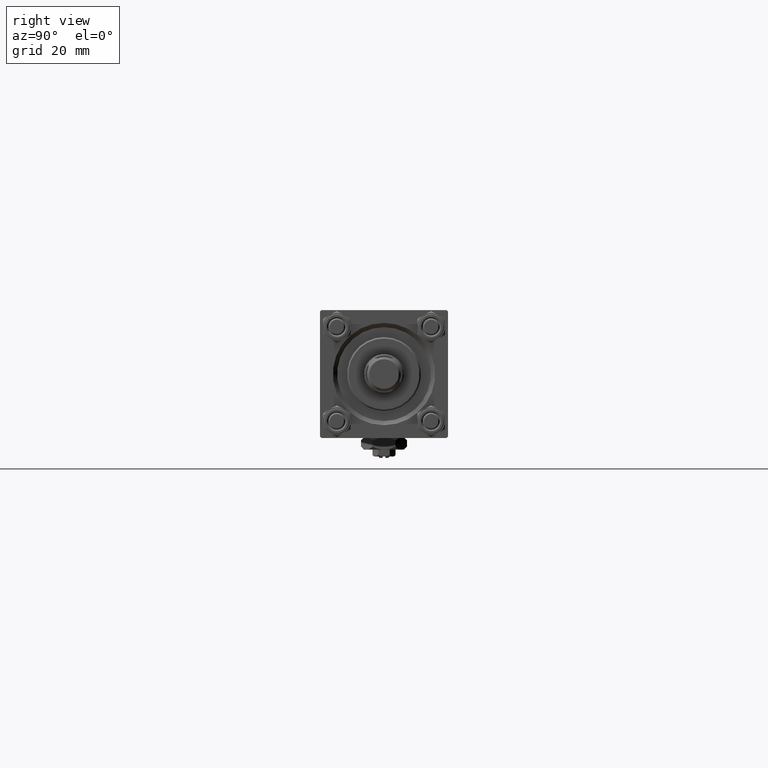
[diagram: clean part render]
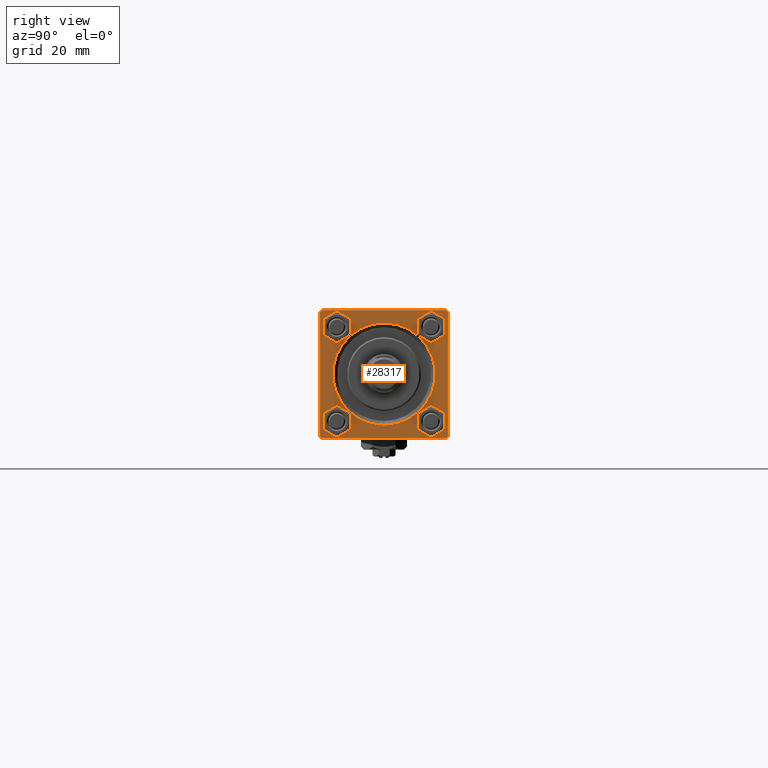
[diagram: same view with one face highlighted and labeled with its STEP entity id]
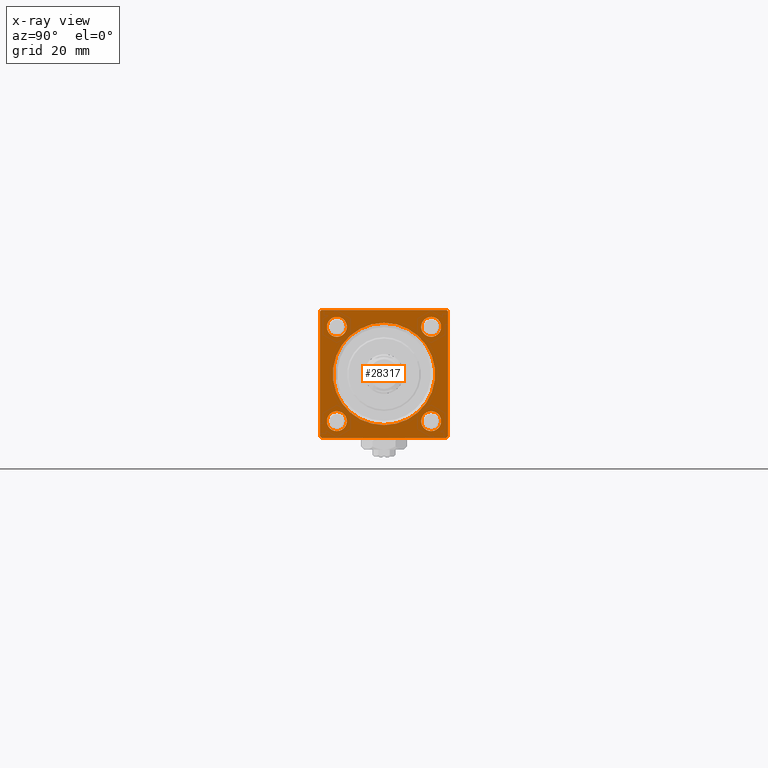
[diagram: x-ray of the same camera — body ghosted, the highlighted face saturated]
A machine part, right view. The second image highlights one B-rep face of the part: STEP entity #28317.
The next image is the same camera in x-ray: the body ghosted, the highlighted face saturated — about 0% of this face is hidden behind the body in this view.
In plain terms, the highlighted planar face has unit normal (-1, 0, 0).
Its self-contained STEP definition (entity closure, byte-faithful):
#137 = LINE ( 'NONE', #8294, #32030 ) ;
#254 = DIRECTION ( 'NONE',  ( -0.000000000000000000, 0.000000000000000000, 1.000000000000000000 ) ) ;
#287 = ORIENTED_EDGE ( 'NONE', *, *, #45254, .T. ) ;
#515 = EDGE_CURVE ( 'NONE', #26533, #2500, #10720, .T. ) ;
#704 = EDGE_LOOP ( 'NONE', ( #18842, #4105 ) ) ;
#899 = AXIS2_PLACEMENT_3D ( 'NONE', #16205, #39889, #8299 ) ;
#1027 = PLANE ( 'NONE',  #30408 ) ;
#1905 = EDGE_LOOP ( 'NONE', ( #8909, #19009 ) ) ;
#2274 = DIRECTION ( 'NONE',  ( -0.000000000000000000, -0.7071067811865474617, -0.7071067811865474617 ) ) ;
#2338 = ORIENTED_EDGE ( 'NONE', *, *, #51331, .T. ) ;
#2500 = VERTEX_POINT ( 'NONE', #28578 ) ;
#2581 = DIRECTION ( 'NONE',  ( -1.000000000000000000, 0.000000000000000000, -0.000000000000000000 ) ) ;
#3549 = AXIS2_PLACEMENT_3D ( 'NONE', #5671, #46960, #34350 ) ;
#3563 = ORIENTED_EDGE ( 'NONE', *, *, #31152, .T. ) ;
#4042 = CARTESIAN_POINT ( 'NONE',  ( 183.0000000000000000, -16.59999999999999076, 16.60000000000000853 ) ) ;
#4105 = ORIENTED_EDGE ( 'NONE', *, *, #12717, .T. ) ;
#4133 = DIRECTION ( 'NONE',  ( -1.000000000000000000, 0.000000000000000000, -0.000000000000000000 ) ) ;
#4350 = DIRECTION ( 'NONE',  ( 0.000000000000000000, 0.000000000000000000, -1.000000000000000000 ) ) ;
#4467 = FACE_BOUND ( 'NONE', #704, .T. ) ;
#5173 = CARTESIAN_POINT ( 'NONE',  ( 183.0000000000000000, 0.000000000000000000, 0.000000000000000000 ) ) ;
#5622 = EDGE_CURVE ( 'NONE', #51213, #17536, #30346, .T. ) ;
#5671 = CARTESIAN_POINT ( 'NONE',  ( 183.0000000000000000, 16.59999999999999787, -16.60000000000000497 ) ) ;
#6144 = CARTESIAN_POINT ( 'NONE',  ( 183.0000000000000000, 22.50000000000000355, 22.50000000000000355 ) ) ;
#6213 = DIRECTION ( 'NONE',  ( 0.000000000000000000, 0.000000000000000000, 1.000000000000000000 ) ) ;
#6231 = CARTESIAN_POINT ( 'NONE',  ( 183.0000000000000000, 22.00000000000000355, -22.49999999999999645 ) ) ;
#6312 = CARTESIAN_POINT ( 'NONE',  ( 183.0000000000000000, 22.50000000000000355, -22.49999999999999645 ) ) ;
#6458 = VERTEX_POINT ( 'NONE', #37344 ) ;
#7054 = CARTESIAN_POINT ( 'NONE',  ( 183.0000000000000000, 22.00000000000000355, 22.50000000000000355 ) ) ;
#7104 = CIRCLE ( 'NONE', #43247, 3.499999999999975131 ) ;
#8294 = CARTESIAN_POINT ( 'NONE',  ( 183.0000000000000000, 22.50000000000000355, 22.50000000000000355 ) ) ;
#8299 = DIRECTION ( 'NONE',  ( 0.000000000000000000, 0.000000000000000000, 1.000000000000000000 ) ) ;
#8909 = ORIENTED_EDGE ( 'NONE', *, *, #33593, .T. ) ;
#8962 = CARTESIAN_POINT ( 'NONE',  ( 183.0000000000000000, 22.50000000000000355, -21.99999999999998224 ) ) ;
#8995 = DIRECTION ( 'NONE',  ( 0.000000000000000000, 0.000000000000000000, 1.000000000000000000 ) ) ;
#10092 = LINE ( 'NONE', #6144, #33123 ) ;
#10294 = CIRCLE ( 'NONE', #3549, 3.499999999999975131 ) ;
#10720 = LINE ( 'NONE', #26759, #34309 ) ;
#10803 = CARTESIAN_POINT ( 'NONE',  ( 183.0000000000000000, 2.204364238465237794E-15, 18.00000000000001421 ) ) ;
#11276 = ORIENTED_EDGE ( 'NONE', *, *, #5622, .T. ) ;
#11633 = VERTEX_POINT ( 'NONE', #29667 ) ;
#11673 = CARTESIAN_POINT ( 'NONE',  ( 183.0000000000000000, 16.59999999999999787, 16.60000000000000497 ) ) ;
#11935 = EDGE_LOOP ( 'NONE', ( #42015, #39918 ) ) ;
#12372 = FACE_OUTER_BOUND ( 'NONE', #25684, .T. ) ;
#12717 = EDGE_CURVE ( 'NONE', #6458, #48315, #10294, .T. ) ;
#14022 = EDGE_CURVE ( 'NONE', #28626, #24887, #43081, .T. ) ;
#14330 = EDGE_LOOP ( 'NONE', ( #11276, #28469 ) ) ;
#14563 = DIRECTION ( 'NONE',  ( 0.000000000000000000, -0.7071067811865474617, 0.7071067811865474617 ) ) ;
#14983 = CARTESIAN_POINT ( 'NONE',  ( 183.0000000000000000, -22.49999999999999645, 22.49999999999999289 ) ) ;
#15163 = CARTESIAN_POINT ( 'NONE',  ( 183.0000000000000000, -16.59999999999999076, -16.60000000000000853 ) ) ;
#15265 = ORIENTED_EDGE ( 'NONE', *, *, #26493, .F. ) ;
#15272 = EDGE_CURVE ( 'NONE', #17536, #51213, #33070, .T. ) ;
#16057 = AXIS2_PLACEMENT_3D ( 'NONE', #50491, #2581, #51267 ) ;
#16160 = DIRECTION ( 'NONE',  ( -1.000000000000000000, 0.000000000000000000, -0.000000000000000000 ) ) ;
#16205 = CARTESIAN_POINT ( 'NONE',  ( 183.0000000000000000, 16.59999999999999787, -16.60000000000000497 ) ) ;
#17536 = VERTEX_POINT ( 'NONE', #10803 ) ;
#18502 = CIRCLE ( 'NONE', #32760, 3.499999999999975131 ) ;
#18842 = ORIENTED_EDGE ( 'NONE', *, *, #39605, .T. ) ;
#19009 = ORIENTED_EDGE ( 'NONE', *, *, #48399, .T. ) ;
#19380 = VECTOR ( 'NONE', #49850, 1000.000000000000114 ) ;
#19822 = DIRECTION ( 'NONE',  ( -1.000000000000000000, 0.000000000000000000, -0.000000000000000000 ) ) ;
#20347 = VERTEX_POINT ( 'NONE', #38678 ) ;
#20378 = AXIS2_PLACEMENT_3D ( 'NONE', #26210, #42265, #6213 ) ;
#20515 = FACE_BOUND ( 'NONE', #14330, .T. ) ;
#21190 = EDGE_CURVE ( 'NONE', #11633, #49258, #41910, .T. ) ;
#22956 = VECTOR ( 'NONE', #44992, 1000.000000000000000 ) ;
#23037 = VECTOR ( 'NONE', #26569, 1000.000000000000000 ) ;
#23731 = CARTESIAN_POINT ( 'NONE',  ( 183.0000000000000000, -16.59999999999999076, 13.10000000000003162 ) ) ;
#24887 = VERTEX_POINT ( 'NONE', #40138 ) ;
#25041 = EDGE_CURVE ( 'NONE', #33894, #36190, #33804, .T. ) ;
#25191 = VERTEX_POINT ( 'NONE', #7054 ) ;
#25232 = FACE_BOUND ( 'NONE', #11935, .T. ) ;
#25338 = CARTESIAN_POINT ( 'NONE',  ( 183.0000000000000000, -22.49999999999999645, -21.99999999999995026 ) ) ;
#25520 = AXIS2_PLACEMENT_3D ( 'NONE', #5173, #40960, #41489 ) ;
#25671 = EDGE_LOOP ( 'NONE', ( #47680, #50315 ) ) ;
#25684 = EDGE_LOOP ( 'NONE', ( #31013, #287, #26611, #33471, #15265, #3563, #2338, #37621 ) ) ;
#26210 = CARTESIAN_POINT ( 'NONE',  ( 183.0000000000000000, -16.59999999999999076, -16.60000000000000853 ) ) ;
#26493 = EDGE_CURVE ( 'NONE', #20347, #36190, #137, .T. ) ;
#26533 = VERTEX_POINT ( 'NONE', #41435 ) ;
#26569 = DIRECTION ( 'NONE',  ( 0.000000000000000000, -1.000000000000000000, -7.709882115452476934E-17 ) ) ;
#26611 = ORIENTED_EDGE ( 'NONE', *, *, #47202, .F. ) ;
#26759 = CARTESIAN_POINT ( 'NONE',  ( 183.0000000000000000, -22.49999999999999645, 21.99999999999999289 ) ) ;
#27344 = VERTEX_POINT ( 'NONE', #43575 ) ;
#27469 = DIRECTION ( 'NONE',  ( 0.000000000000000000, 0.000000000000000000, 1.000000000000000000 ) ) ;
#27635 = AXIS2_PLACEMENT_3D ( 'NONE', #31755, #4133, #28333 ) ;
#28317 = ADVANCED_FACE ( 'NONE', ( #28668, #4467, #25232, #44208, #20515, #12372 ), #1027, .F. ) ;
#28333 = DIRECTION ( 'NONE',  ( 0.000000000000000000, 0.000000000000000000, 1.000000000000000000 ) ) ;
#28469 = ORIENTED_EDGE ( 'NONE', *, *, #15272, .T. ) ;
#28578 = CARTESIAN_POINT ( 'NONE',  ( 183.0000000000000000, -22.49999999999999645, 21.99999999999999289 ) ) ;
#28626 = VERTEX_POINT ( 'NONE', #47495 ) ;
#28668 = FACE_BOUND ( 'NONE', #25671, .T. ) ;
#28936 = LINE ( 'NONE', #47894, #22956 ) ;
#29485 = CIRCLE ( 'NONE', #43785, 3.499999999999975131 ) ;
#29667 = CARTESIAN_POINT ( 'NONE',  ( 183.0000000000000000, 16.59999999999999787, 13.10000000000002807 ) ) ;
#30093 = CARTESIAN_POINT ( 'NONE',  ( 183.0000000000000000, 22.50000000000000355, -21.99999999999999645 ) ) ;
#30319 = CARTESIAN_POINT ( 'NONE',  ( 183.0000000000000000, 16.59999999999999787, 20.09999999999998010 ) ) ;
#30346 = CIRCLE ( 'NONE', #16057, 18.00000000000001421 ) ;
#30408 = AXIS2_PLACEMENT_3D ( 'NONE', #33381, #36562, #254 ) ;
#31013 = ORIENTED_EDGE ( 'NONE', *, *, #38524, .T. ) ;
#31152 = EDGE_CURVE ( 'NONE', #20347, #25191, #50600, .T. ) ;
#31755 = CARTESIAN_POINT ( 'NONE',  ( 183.0000000000000000, 16.59999999999999787, 16.60000000000000497 ) ) ;
#31781 = VERTEX_POINT ( 'NONE', #47033 ) ;
#31885 = AXIS2_PLACEMENT_3D ( 'NONE', #15163, #43054, #34374 ) ;
#32030 = VECTOR ( 'NONE', #4350, 1000.000000000000000 ) ;
#32719 = CARTESIAN_POINT ( 'NONE',  ( 183.0000000000000000, 0.000000000000000000, -18.00000000000001421 ) ) ;
#32760 = AXIS2_PLACEMENT_3D ( 'NONE', #50037, #45048, #8995 ) ;
#33070 = CIRCLE ( 'NONE', #25520, 18.00000000000001421 ) ;
#33123 = VECTOR ( 'NONE', #38240, 1000.000000000000000 ) ;
#33381 = CARTESIAN_POINT ( 'NONE',  ( 183.0000000000000000, 0.000000000000000000, 0.000000000000000000 ) ) ;
#33471 = ORIENTED_EDGE ( 'NONE', *, *, #25041, .T. ) ;
#33593 = EDGE_CURVE ( 'NONE', #48622, #31781, #18502, .T. ) ;
#33804 = LINE ( 'NONE', #30093, #19380 ) ;
#33894 = VERTEX_POINT ( 'NONE', #6231 ) ;
#34309 = VECTOR ( 'NONE', #2274, 1000.000000000000114 ) ;
#34350 = DIRECTION ( 'NONE',  ( 0.000000000000000000, 0.000000000000000000, 1.000000000000000000 ) ) ;
#34374 = DIRECTION ( 'NONE',  ( 0.000000000000000000, 0.000000000000000000, 1.000000000000000000 ) ) ;
#34391 = VECTOR ( 'NONE', #14563, 1000.000000000000114 ) ;
#34418 = CIRCLE ( 'NONE', #31885, 3.499999999999975131 ) ;
#34858 = CARTESIAN_POINT ( 'NONE',  ( 183.0000000000000000, 16.59999999999999787, -20.09999999999998010 ) ) ;
#36190 = VERTEX_POINT ( 'NONE', #8962 ) ;
#36491 = EDGE_CURVE ( 'NONE', #24887, #28626, #34418, .T. ) ;
#36562 = DIRECTION ( 'NONE',  ( -1.000000000000000000, 0.000000000000000000, -0.000000000000000000 ) ) ;
#37344 = CARTESIAN_POINT ( 'NONE',  ( 183.0000000000000000, 16.59999999999999787, -13.10000000000002807 ) ) ;
#37621 = ORIENTED_EDGE ( 'NONE', *, *, #515, .T. ) ;
#38240 = DIRECTION ( 'NONE',  ( 0.000000000000000000, -1.000000000000000000, -2.312964634635742957E-16 ) ) ;
#38524 = EDGE_CURVE ( 'NONE', #2500, #41531, #51549, .T. ) ;
#38678 = CARTESIAN_POINT ( 'NONE',  ( 183.0000000000000000, 22.50000000000000355, 22.00000000000000355 ) ) ;
#38694 = VECTOR ( 'NONE', #43655, 1000.000000000000000 ) ;
#38735 = CIRCLE ( 'NONE', #899, 3.499999999999975131 ) ;
#39605 = EDGE_CURVE ( 'NONE', #48315, #6458, #38735, .T. ) ;
#39839 = EDGE_CURVE ( 'NONE', #49258, #11633, #29485, .T. ) ;
#39889 = DIRECTION ( 'NONE',  ( -1.000000000000000000, 0.000000000000000000, -0.000000000000000000 ) ) ;
#39918 = ORIENTED_EDGE ( 'NONE', *, *, #39839, .T. ) ;
#40138 = CARTESIAN_POINT ( 'NONE',  ( 183.0000000000000000, -16.59999999999999076, -20.09999999999998366 ) ) ;
#40960 = DIRECTION ( 'NONE',  ( -1.000000000000000000, 0.000000000000000000, -0.000000000000000000 ) ) ;
#41435 = CARTESIAN_POINT ( 'NONE',  ( 183.0000000000000000, -21.99999999999998224, 22.49999999999999289 ) ) ;
#41489 = DIRECTION ( 'NONE',  ( 0.000000000000000000, 0.000000000000000000, 1.000000000000000000 ) ) ;
#41531 = VERTEX_POINT ( 'NONE', #25338 ) ;
#41656 = CARTESIAN_POINT ( 'NONE',  ( 183.0000000000000000, 22.00000000000000355, 22.50000000000000355 ) ) ;
#41910 = CIRCLE ( 'NONE', #27635, 3.499999999999975131 ) ;
#42015 = ORIENTED_EDGE ( 'NONE', *, *, #21190, .T. ) ;
#42265 = DIRECTION ( 'NONE',  ( -1.000000000000000000, 0.000000000000000000, -0.000000000000000000 ) ) ;
#43054 = DIRECTION ( 'NONE',  ( -1.000000000000000000, 0.000000000000000000, -0.000000000000000000 ) ) ;
#43081 = CIRCLE ( 'NONE', #20378, 3.499999999999975131 ) ;
#43247 = AXIS2_PLACEMENT_3D ( 'NONE', #4042, #16160, #27469 ) ;
#43575 = CARTESIAN_POINT ( 'NONE',  ( 183.0000000000000000, -21.99999999999995381, -22.50000000000000000 ) ) ;
#43655 = DIRECTION ( 'NONE',  ( 0.000000000000000000, 0.000000000000000000, -1.000000000000000000 ) ) ;
#43785 = AXIS2_PLACEMENT_3D ( 'NONE', #11673, #19822, #48484 ) ;
#44208 = FACE_BOUND ( 'NONE', #1905, .T. ) ;
#44992 = DIRECTION ( 'NONE',  ( 0.000000000000000000, 0.7071067811865426878, -0.7071067811865524577 ) ) ;
#45048 = DIRECTION ( 'NONE',  ( -1.000000000000000000, 0.000000000000000000, -0.000000000000000000 ) ) ;
#45254 = EDGE_CURVE ( 'NONE', #41531, #27344, #28936, .T. ) ;
#46960 = DIRECTION ( 'NONE',  ( -1.000000000000000000, 0.000000000000000000, -0.000000000000000000 ) ) ;
#47033 = CARTESIAN_POINT ( 'NONE',  ( 183.0000000000000000, -16.59999999999999076, 20.09999999999998366 ) ) ;
#47202 = EDGE_CURVE ( 'NONE', #33894, #27344, #49988, .T. ) ;
#47495 = CARTESIAN_POINT ( 'NONE',  ( 183.0000000000000000, -16.59999999999999076, -13.10000000000003162 ) ) ;
#47680 = ORIENTED_EDGE ( 'NONE', *, *, #36491, .T. ) ;
#47894 = CARTESIAN_POINT ( 'NONE',  ( 183.0000000000000000, -21.99999999999996803, -22.50000000000000000 ) ) ;
#48315 = VERTEX_POINT ( 'NONE', #34858 ) ;
#48399 = EDGE_CURVE ( 'NONE', #31781, #48622, #7104, .T. ) ;
#48484 = DIRECTION ( 'NONE',  ( 0.000000000000000000, 0.000000000000000000, 1.000000000000000000 ) ) ;
#48622 = VERTEX_POINT ( 'NONE', #23731 ) ;
#49258 = VERTEX_POINT ( 'NONE', #30319 ) ;
#49850 = DIRECTION ( 'NONE',  ( -0.000000000000000000, 0.7071067811865474617, 0.7071067811865474617 ) ) ;
#49988 = LINE ( 'NONE', #6312, #23037 ) ;
#50037 = CARTESIAN_POINT ( 'NONE',  ( 183.0000000000000000, -16.59999999999999076, 16.60000000000000853 ) ) ;
#50315 = ORIENTED_EDGE ( 'NONE', *, *, #14022, .T. ) ;
#50491 = CARTESIAN_POINT ( 'NONE',  ( 183.0000000000000000, 0.000000000000000000, 0.000000000000000000 ) ) ;
#50600 = LINE ( 'NONE', #41656, #34391 ) ;
#51213 = VERTEX_POINT ( 'NONE', #32719 ) ;
#51267 = DIRECTION ( 'NONE',  ( 0.000000000000000000, 0.000000000000000000, 1.000000000000000000 ) ) ;
#51331 = EDGE_CURVE ( 'NONE', #25191, #26533, #10092, .T. ) ;
#51549 = LINE ( 'NONE', #14983, #38694 ) ;